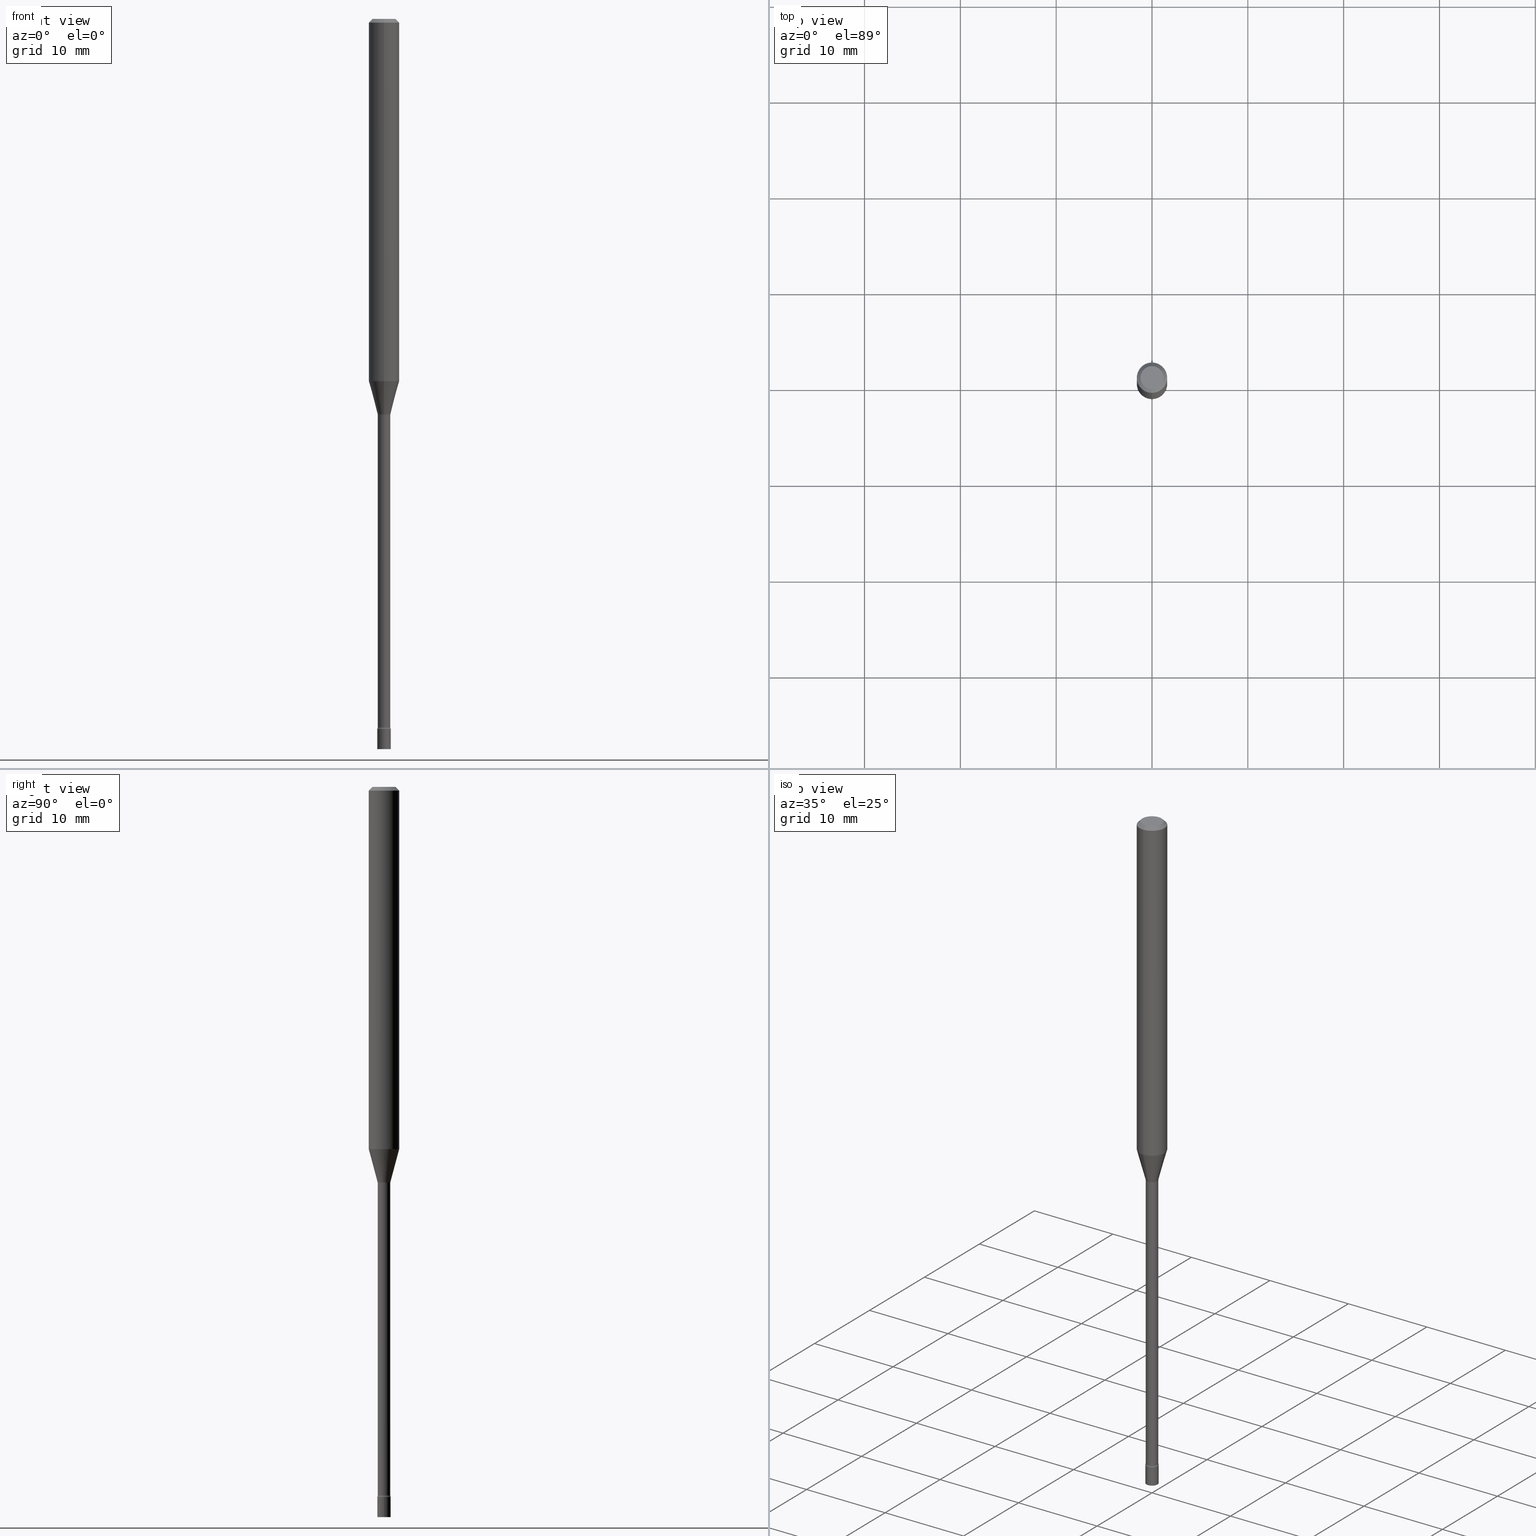
[diagram: canonical four-view strip — front | top / right | iso, engineering-drawing reading convention]
A machine part, canonical four-view strip (front | top / right | iso — engineering-drawing reading convention). The complete STEP part file that produces these views, byte-faithful:
ISO-10303-21;
HEADER;
FILE_DESCRIPTION (( 'STEP AP203' ),
    '1' );
FILE_NAME ('03681.STEP',
    '2024-03-08T22:34:30',
    ( '' ),
    ( '' ),
    'SwSTEP 2.0',
    'SolidWorks 2023',
    '' );
FILE_SCHEMA (( 'CONFIG_CONTROL_DESIGN' ));
ENDSEC;

DATA;
#1 = CARTESIAN_POINT ( 'NONE',  ( 0.000000000000000000, 0.000000000000000000, 0.000000000000000000 ) ) ;
#2 = AXIS2_PLACEMENT_3D ( 'NONE', #436, #400, #68 ) ;
#3 = VECTOR ( 'NONE', #341, 39.37007874015748143 ) ;
#4 = CC_DESIGN_PERSON_AND_ORGANIZATION_ASSIGNMENT ( #463, #61, ( #31 ) ) ;
#5 = CARTESIAN_POINT ( 'NONE',  ( -2.852540253834139269E-16, -0.04085000000001031556, -2.910160592130893953 ) ) ;
#6 = DIRECTION ( 'NONE',  ( -2.445468806185136597E-29, 3.491481338843145583E-15, 1.000000000000000000 ) ) ;
#7 = APPROVAL_STATUS ( 'not_yet_approved' ) ;
#8 = DIRECTION ( 'NONE',  ( -2.445428699565055346E-29, 3.491538773805828826E-15, 1.000000000000000000 ) ) ;
#9 = CIRCLE ( 'NONE', #498, 0.06250000000000000000 ) ;
#10 = LINE ( 'NONE', #101, #367 ) ;
#11 = CARTESIAN_POINT ( 'NONE',  ( -0.02750000000000000014, 1.953992523340275521E-16, -1.352707149820099181E-30 ) ) ;
#12 = LINE ( 'NONE', #262, #223 ) ;
#13 = PRODUCT_RELATED_PRODUCT_CATEGORY ( 'detail', '', ( #31 ) ) ;
#14 = AXIS2_PLACEMENT_3D ( 'NONE', #282, #94, #40 ) ;
#15 = SECURITY_CLASSIFICATION ( '', '', #283 ) ;
#16 = LINE ( 'NONE', #175, #3 ) ;
#17 = VERTEX_POINT ( 'NONE', #471 ) ;
#18 = DIRECTION ( 'NONE',  ( 6.982962677686265922E-15, 1.000000000000000000, -3.483106191921935554E-15 ) ) ;
#19 = DIRECTION ( 'NONE',  ( -2.445428699565055346E-29, 3.491538773805828432E-15, 1.000000000000000000 ) ) ;
#20 = ORIENTED_EDGE ( 'NONE', *, *, #117, .F. ) ;
#21 = ORIENTED_EDGE ( 'NONE', *, *, #365, .T. ) ;
#22 = AXIS2_PLACEMENT_3D ( 'NONE', #368, #493, #414 ) ;
#23 = CC_DESIGN_APPROVAL ( #185, ( #15 ) ) ;
#24 = FACE_OUTER_BOUND ( 'NONE', #42, .T. ) ;
#25 = ADVANCED_FACE ( 'NONE', ( #98 ), #277, .T. ) ;
#26 = ORIENTED_EDGE ( 'NONE', *, *, #299, .T. ) ;
#27 = ORIENTED_EDGE ( 'NONE', *, *, #328, .T. ) ;
#28 = PLANE ( 'NONE',  #55 ) ;
#29 = EDGE_CURVE ( 'NONE', #189, #67, #201, .T. ) ;
#30 = EDGE_LOOP ( 'NONE', ( #264, #483 ) ) ;
#31 = PRODUCT ( '03681', '03681', '', ( #230 ) ) ;
#32 = DIRECTION ( 'NONE',  ( 6.982962677686265922E-15, 1.000000000000000000, -3.491538773805828432E-15 ) ) ;
#33 = CIRCLE ( 'NONE', #48, 0.04749999999999999362 ) ;
#34 = APPROVAL_DATE_TIME ( #401, #196 ) ;
#35 = ORIENTED_EDGE ( 'NONE', *, *, #266, .T. ) ;
#36 = DIRECTION ( 'NONE',  ( 0.000000000000000000, 0.000000000000000000, 1.000000000000000000 ) ) ;
#37 = DIRECTION ( 'NONE',  ( 1.000000000000000000, -7.105427357601001070E-15, 4.926316211917514310E-29 ) ) ;
#38 = DIRECTION ( 'NONE',  ( -2.445428699565055346E-29, 3.491538773805828826E-15, 1.000000000000000000 ) ) ;
#39 = ADVANCED_FACE ( 'NONE', ( #24 ), #430, .F. ) ;
#40 = DIRECTION ( 'NONE',  ( 1.000000000000000000, -6.982962677686279332E-15, 0.000000000000000000 ) ) ;
#41 = AXIS2_PLACEMENT_3D ( 'NONE', #214, #458, #345 ) ;
#42 = EDGE_LOOP ( 'NONE', ( #358, #145, #224, #392 ) ) ;
#43 = CARTESIAN_POINT ( 'NONE',  ( 1.836752971940574728E-16, 0.02584999999999431503, -1.626974787463811412 ) ) ;
#44 = EDGE_CURVE ( 'NONE', #183, #434, #9, .T. ) ;
#45 = CARTESIAN_POINT ( 'NONE',  ( 3.978716091192442903E-29, -5.680552109198189937E-15, -1.626974787463811412 ) ) ;
#46 = DIRECTION ( 'NONE',  ( -2.445428699565055346E-29, 3.491538773805828826E-15, 1.000000000000000000 ) ) ;
#47 = CALENDAR_DATE ( 2024, 8, 3 ) ;
#48 = AXIS2_PLACEMENT_3D ( 'NONE', #171, #46, #207 ) ;
#49 = FACE_OUTER_BOUND ( 'NONE', #481, .T. ) ;
#50 = APPROVAL_DATE_TIME ( #86, #248 ) ;
#51 = FACE_OUTER_BOUND ( 'NONE', #437, .T. ) ;
#52 = PERSON_AND_ORGANIZATION_ROLE ( 'classification_officer' ) ;
#53 = CARTESIAN_POINT ( 'NONE',  ( 2.902567075580406465E-16, 0.04084999999999432141, -1.626974787463811634 ) ) ;
#54 = ORIENTED_EDGE ( 'NONE', *, *, #328, .F. ) ;
#55 = AXIS2_PLACEMENT_3D ( 'NONE', #276, #79, #438 ) ;
#56 = CIRCLE ( 'NONE', #182, 0.04749999999999999362 ) ;
#57 = LINE ( 'NONE', #258, #455 ) ;
#58 = DIRECTION ( 'NONE',  ( -2.445468806185136597E-29, 3.491481338843145583E-15, 1.000000000000000000 ) ) ;
#59 = CARTESIAN_POINT ( 'NONE',  ( 3.840629472727447874E-16, 0.04749999999999999362, -1.947592745229184119E-16 ) ) ;
#60 = EDGE_LOOP ( 'NONE', ( #153, #350, #427, #509 ) ) ;
#61 = PERSON_AND_ORGANIZATION_ROLE ( 'design_owner' ) ;
#62 = EDGE_CURVE ( 'NONE', #431, #434, #424, .T. ) ;
#63 = ORIENTED_EDGE ( 'NONE', *, *, #87, .F. ) ;
#64 = AXIS2_PLACEMENT_3D ( 'NONE', #515, #280, #154 ) ;
#65 = AXIS2_PLACEMENT_3D ( 'NONE', #435, #36, #187 ) ;
#66 = VERTEX_POINT ( 'NONE', #503 ) ;
#67 = VERTEX_POINT ( 'NONE', #426 ) ;
#68 = DIRECTION ( 'NONE',  ( -6.982962677686265922E-15, -1.000000000000000000, 3.491538773805828826E-15 ) ) ;
#69 = EDGE_CURVE ( 'NONE', #229, #354, #325, .T. ) ;
#70 = EDGE_LOOP ( 'NONE', ( #105, #21, #318, #54 ) ) ;
#71 = CARTESIAN_POINT ( 'NONE',  ( 3.316907271900976096E-16, 0.04749999999999999362, -1.803036831393476480E-16 ) ) ;
#72 = AXIS2_PLACEMENT_3D ( 'NONE', #311, #37, #476 ) ;
#73 = CARTESIAN_POINT ( 'NONE',  ( 3.668143049347590078E-31, -5.237308160708754087E-17, -0.01500000000000003067 ) ) ;
#74 = CONICAL_SURFACE ( 'NONE', #357, 0.06250000000000000000, 0.7853981633974483900 ) ;
#75 = ORIENTED_EDGE ( 'NONE', *, *, #347, .F. ) ;
#76 = DESIGN_CONTEXT ( 'detailed design', #139, 'design' ) ;
#77 = DIRECTION ( 'NONE',  ( -2.445428699565055346E-29, 3.491538773805828826E-15, 1.000000000000000000 ) ) ;
#78 = EDGE_CURVE ( 'NONE', #399, #510, #443, .T. ) ;
#79 = DIRECTION ( 'NONE',  ( 2.438088387897960049E-29, -3.491481338843145188E-15, -1.000000000000000000 ) ) ;
#80 = DIRECTION ( 'NONE',  ( -2.445428699565055346E-29, 3.491538773805828826E-15, 1.000000000000000000 ) ) ;
#81 = AXIS2_PLACEMENT_3D ( 'NONE', #5, #133, #447 ) ;
#82 =( NAMED_UNIT ( * ) SI_UNIT ( $, .STERADIAN. ) SOLID_ANGLE_UNIT ( ) );
#83 = APPROVAL_PERSON_ORGANIZATION ( #452, #185, #291 ) ;
#84 = EDGE_CURVE ( 'NONE', #432, #507, #152, .T. ) ;
#85 = CARTESIAN_POINT ( 'NONE',  ( 4.440892098500625669E-16, 0.06250000000000000000, -2.182211733628643017E-16 ) ) ;
#86 = DATE_AND_TIME ( #121, #413 ) ;
#87 = EDGE_CURVE ( 'NONE', #141, #218, #339, .T. ) ;
#88 = ORIENTED_EDGE ( 'NONE', *, *, #62, .T. ) ;
#89 = CARTESIAN_POINT ( 'NONE',  ( -1.805095852181904702E-16, -0.02585000000000007084, 9.025627730288093194E-17 ) ) ;
#90 = CALENDAR_DATE ( 2024, 8, 3 ) ;
#91 = LINE ( 'NONE', #11, #268 ) ;
#92 = AXIS2_PLACEMENT_3D ( 'NONE', #393, #109, #269 ) ;
#93 = PERSON_AND_ORGANIZATION ( #200, #340 ) ;
#94 = DIRECTION ( 'NONE',  ( -2.445468806185136597E-29, 3.491481338843145583E-15, 1.000000000000000000 ) ) ;
#95 = CARTESIAN_POINT ( 'NONE',  ( 1.895372747640785166E-16, 0.02584999999998998516, -2.910160592130893953 ) ) ;
#96 = ORIENTED_EDGE ( 'NONE', *, *, #137, .T. ) ;
#97 = DIRECTION ( 'NONE',  ( -6.982962677686265922E-15, -1.000000000000000000, 3.491538773805829221E-15 ) ) ;
#98 = FACE_OUTER_BOUND ( 'NONE', #138, .T. ) ;
#99 = AXIS2_PLACEMENT_3D ( 'NONE', #309, #344, #342 ) ;
#100 = AXIS2_PLACEMENT_3D ( 'NONE', #451, #170, #337 ) ;
#101 = CARTESIAN_POINT ( 'NONE',  ( -1.840786654675968274E-16, -0.02636111260566965236, -1.623092501787273489 ) ) ;
#102 = CARTESIAN_POINT ( 'NONE',  ( 1.873069706851251626E-16, 0.02636111260565831421, -1.623092501787273489 ) ) ;
#103 = CALENDAR_DATE ( 2024, 8, 3 ) ;
#104 = CARTESIAN_POINT ( 'NONE',  ( 7.133432507642043982E-29, -1.018465106540545729E-14, -2.917000000000000703 ) ) ;
#105 = ORIENTED_EDGE ( 'NONE', *, *, #117, .T. ) ;
#106 = DIRECTION ( 'NONE',  ( -6.982962677686265922E-15, -1.000000000000000000, 3.491538773805828432E-15 ) ) ;
#107 = ORIENTED_EDGE ( 'NONE', *, *, #174, .T. ) ;
#108 = AXIS2_PLACEMENT_3D ( 'NONE', #377, #255, #378 ) ;
#109 = DIRECTION ( 'NONE',  ( -2.438088387897960049E-29, 3.491481338843145188E-15, 1.000000000000000000 ) ) ;
#110 = ORIENTED_EDGE ( 'NONE', *, *, #315, .T. ) ;
#111 = PLANE ( 'NONE',  #405 ) ;
#112 = PERSON_AND_ORGANIZATION ( #200, #340 ) ;
#113 = DIRECTION ( 'NONE',  ( -2.445428699565055346E-29, 3.491538773805828826E-15, 1.000000000000000000 ) ) ;
#114 = ORIENTED_EDGE ( 'NONE', *, *, #146, .T. ) ;
#115 = CARTESIAN_POINT ( 'NONE',  ( -4.287811248607203282E-16, -0.06250000000000005551, -0.01499999999999981209 ) ) ;
#116 = AXIS2_PLACEMENT_3D ( 'NONE', #53, #343, #425 ) ;
#117 = EDGE_CURVE ( 'NONE', #459, #470, #134, .T. ) ;
#118 = MANIFOLD_SOLID_BREP ( 'Body-Move/Copy2[2]', #475 ) ;
#119 = CYLINDRICAL_SURFACE ( 'NONE', #505, 0.02750000000000000014 ) ;
#120 = CARTESIAN_POINT ( 'NONE',  ( 7.133315516631267270E-29, -1.018481860319160417E-14, -2.917000000000000703 ) ) ;
#121 = CALENDAR_DATE ( 2024, 8, 3 ) ;
#122 = UNCERTAINTY_MEASURE_WITH_UNIT (LENGTH_MEASURE( 1.000000000000000082E-05 ), #490, 'distance_accuracy_value', 'NONE');
#123 = FACE_OUTER_BOUND ( 'NONE', #151, .T. ) ;
#124 = ADVANCED_FACE ( 'NONE', ( #197 ), #484, .T. ) ;
#125 = AXIS2_PLACEMENT_3D ( 'NONE', #488, #290, #205 ) ;
#126 = AXIS2_PLACEMENT_3D ( 'NONE', #464, #461, #97 ) ;
#127 = DIRECTION ( 'NONE',  ( -2.445428699565055346E-29, 3.491538773805828826E-15, 1.000000000000000000 ) ) ;
#128 = PERSON_AND_ORGANIZATION ( #200, #340 ) ;
#129 = ORIENTED_EDGE ( 'NONE', *, *, #289, .T. ) ;
#130 = FACE_OUTER_BOUND ( 'NONE', #70, .T. ) ;
#131 = CC_DESIGN_PERSON_AND_ORGANIZATION_ASSIGNMENT ( #93, #213, ( #477 ) ) ;
#132 = ADVANCED_FACE ( 'NONE', ( #520 ), #119, .T. ) ;
#133 = DIRECTION ( 'NONE',  ( -1.000000000000000000, 6.982962677686265922E-15, -4.883557194083112340E-29 ) ) ;
#134 = CIRCLE ( 'NONE', #233, 0.02585000000000014370 ) ;
#135 = CARTESIAN_POINT ( 'NONE',  ( 3.156980902676120702E-16, 0.02636111260565831421, -1.623092501787273489 ) ) ;
#136 = DIRECTION ( 'NONE',  ( -1.807323732225322645E-15, -0.2588190451025171313, 0.9659258262890693114 ) ) ;
#137 = EDGE_CURVE ( 'NONE', #431, #17, #465, .T. ) ;
#138 = EDGE_LOOP ( 'NONE', ( #372, #96, #192, #380 ) ) ;
#139 = APPLICATION_CONTEXT ( 'configuration controlled 3d designs of mechanical parts and assemblies' ) ;
#140 = CYLINDRICAL_SURFACE ( 'NONE', #126, 0.02585000000000007084 ) ;
#141 = VERTEX_POINT ( 'NONE', #316 ) ;
#142 = ADVANCED_FACE ( 'NONE', ( #327 ), #28, .T. ) ;
#143 = AXIS2_PLACEMENT_3D ( 'NONE', #334, #8, #249 ) ;
#144 = ORIENTED_EDGE ( 'NONE', *, *, #221, .F. ) ;
#145 = ORIENTED_EDGE ( 'NONE', *, *, #416, .F. ) ;
#146 = EDGE_CURVE ( 'NONE', #507, #510, #422, .T. ) ;
#147 = EDGE_CURVE ( 'NONE', #470, #462, #191, .T. ) ;
#148 = ORIENTED_EDGE ( 'NONE', *, *, #69, .F. ) ;
#149 = CARTESIAN_POINT ( 'NONE',  ( 3.668143049347590078E-31, -5.237308160708754087E-17, -0.01500000000000003067 ) ) ;
#150 = CIRCLE ( 'NONE', #514, 0.02750000000000000014 ) ;
#151 = EDGE_LOOP ( 'NONE', ( #519, #390, #107, #495 ) ) ;
#152 = LINE ( 'NONE', #199, #250 ) ;
#153 = ORIENTED_EDGE ( 'NONE', *, *, #137, .F. ) ;
#154 = DIRECTION ( 'NONE',  ( 1.000000000000000000, -6.982962677686279332E-15, 0.000000000000000000 ) ) ;
#155 = COORDINATED_UNIVERSAL_TIME_OFFSET ( 5, 0, .BEHIND. ) ;
#156 = ORIENTED_EDGE ( 'NONE', *, *, #147, .T. ) ;
#157 = DIRECTION ( 'NONE',  ( -2.445428699565055346E-29, 3.491538773805828826E-15, 1.000000000000000000 ) ) ;
#158 = CC_DESIGN_DATE_AND_TIME_ASSIGNMENT ( #408, #449, ( #15 ) ) ;
#159 = APPROVAL_STATUS ( 'not_yet_approved' ) ;
#160 = CIRCLE ( 'NONE', #14, 0.02750000000000000014 ) ;
#161 = CIRCLE ( 'NONE', #116, 0.01500000000000002720 ) ;
#162 = DIRECTION ( 'NONE',  ( -2.445468806185136597E-29, 3.491481338843145583E-15, 1.000000000000000000 ) ) ;
#163 = CARTESIAN_POINT ( 'NONE',  ( 3.969156985919444182E-29, -5.667090403463771759E-15, -1.623092501787273489 ) ) ;
#164 = ADVANCED_FACE ( 'NONE', ( #238 ), #228, .T. ) ;
#165 = DIRECTION ( 'NONE',  ( 1.000000000000000000, -6.982962677686279332E-15, 0.000000000000000000 ) ) ;
#166 = COORDINATED_UNIVERSAL_TIME_OFFSET ( 5, 0, .BEHIND. ) ;
#167 = EDGE_LOOP ( 'NONE', ( #428, #144 ) ) ;
#168 = AXIS2_PLACEMENT_3D ( 'NONE', #163, #444, #329 ) ;
#169 = APPLICATION_PROTOCOL_DEFINITION ( 'international standard', 'config_control_design', 1994, #387 ) ;
#170 = DIRECTION ( 'NONE',  ( -1.000000000000000000, 6.982962677686265922E-15, -4.883557194083112340E-29 ) ) ;
#171 = CARTESIAN_POINT ( 'NONE',  ( 7.070023607713859463E-46, -1.009445156280616203E-31, -2.891118276714155250E-17 ) ) ;
#172 = CARTESIAN_POINT ( 'NONE',  ( 1.920314736364436624E-16, 0.02749999999998981731, -2.917000000000000703 ) ) ;
#173 = CIRCLE ( 'NONE', #261, 0.02636111260566398329 ) ;
#174 = EDGE_CURVE ( 'NONE', #510, #507, #260, .T. ) ;
#175 = CARTESIAN_POINT ( 'NONE',  ( 0.02750000000000000014, -1.920314736363723444E-16, 1.340948613343882413E-30 ) ) ;
#176 = ORIENTED_EDGE ( 'NONE', *, *, #416, .T. ) ;
#177 = ADVANCED_FACE ( 'NONE', ( #512 ), #237, .T. ) ;
#178 = PLANE ( 'NONE',  #423 ) ;
#179 = ORIENTED_EDGE ( 'NONE', *, *, #44, .T. ) ;
#180 = CARTESIAN_POINT ( 'NONE',  ( -3.773273898774340269E-16, -0.04749999999999999362, 1.369369089886353315E-16 ) ) ;
#181 = AXIS2_PLACEMENT_3D ( 'NONE', #104, #58, #389 ) ;
#182 = AXIS2_PLACEMENT_3D ( 'NONE', #295, #448, #331 ) ;
#183 = VERTEX_POINT ( 'NONE', #487 ) ;
#184 = EDGE_LOOP ( 'NONE', ( #278, #110, #222, #274 ) ) ;
#185 = APPROVAL ( #7, 'UNSPECIFIED' ) ;
#186 = ORIENTED_EDGE ( 'NONE', *, *, #147, .F. ) ;
#187 = DIRECTION ( 'NONE',  ( 1.000000000000000000, 0.000000000000000000, 0.000000000000000000 ) ) ;
#188 = DIRECTION ( 'NONE',  ( -6.982962677686265922E-15, -1.000000000000000000, 3.491538773805828826E-15 ) ) ;
#189 = VERTEX_POINT ( 'NONE', #190 ) ;
#190 = CARTESIAN_POINT ( 'NONE',  ( 0.02750000000000000014, -1.037668253904183058E-14, -2.917000000000000703 ) ) ;
#191 = CIRCLE ( 'NONE', #72, 0.01500000000000001159 ) ;
#192 = ORIENTED_EDGE ( 'NONE', *, *, #362, .T. ) ;
#193 =( GEOMETRIC_REPRESENTATION_CONTEXT ( 3 ) GLOBAL_UNCERTAINTY_ASSIGNED_CONTEXT ( ( #122 ) ) GLOBAL_UNIT_ASSIGNED_CONTEXT ( ( #490, #330, #82 ) ) REPRESENTATION_CONTEXT ( 'NONE', 'WORKASPACE' ) );
#194 = DIRECTION ( 'NONE',  ( -2.445428699565055346E-29, 3.491538773805828826E-15, 1.000000000000000000 ) ) ;
#195 = ORIENTED_EDGE ( 'NONE', *, *, #78, .F. ) ;
#196 = APPROVAL ( #159, 'UNSPECIFIED' ) ;
#197 = FACE_OUTER_BOUND ( 'NONE', #271, .T. ) ;
#198 = DATE_AND_TIME ( #480, #439 ) ;
#199 = CARTESIAN_POINT ( 'NONE',  ( 4.364351673553919652E-16, 0.06249999999999995143, -0.01500000000000024751 ) ) ;
#200 = PERSON ( 'UNSPECIFIED', 'UNSPECIFIED', 'UNSPECIFIED', ('UNSPECIFIED'), ('UNSPECIFIED'), ('UNSPECIFIED') ) ;
#201 = CIRCLE ( 'NONE', #181, 0.02750000000000000014 ) ;
#202 = CIRCLE ( 'NONE', #374, 0.06250000000000000000 ) ;
#203 = CYLINDRICAL_SURFACE ( 'NONE', #22, 0.02585000000000007084 ) ;
#204 = CC_DESIGN_PERSON_AND_ORGANIZATION_ASSIGNMENT ( #508, #317, ( #429 ) ) ;
#205 = DIRECTION ( 'NONE',  ( -6.982962677686266711E-15, -1.000000000000000000, 0.000000000000000000 ) ) ;
#206 = DIRECTION ( 'NONE',  ( -6.982962677686265922E-15, -1.000000000000000000, 3.491538773805828432E-15 ) ) ;
#207 = DIRECTION ( 'NONE',  ( -6.982962677686266711E-15, -1.000000000000000000, 3.491538773805829221E-15 ) ) ;
#208 = AXIS2_PLACEMENT_3D ( 'NONE', #319, #113, #272 ) ;
#209 = CIRCLE ( 'NONE', #100, 0.01500000000000002720 ) ;
#210 = DIRECTION ( 'NONE',  ( -2.445428699565055346E-29, 3.491538773805828826E-15, 1.000000000000000000 ) ) ;
#211 = CARTESIAN_POINT ( 'NONE',  ( 7.116706949045367529E-29, -1.016077140046173545E-14, -2.910160592130893953 ) ) ;
#212 = CYLINDRICAL_SURFACE ( 'NONE', #41, 0.02750000000000000014 ) ;
#213 = PERSON_AND_ORGANIZATION_ROLE ( 'design_supplier' ) ;
#214 = CARTESIAN_POINT ( 'NONE',  ( 0.000000000000000000, 0.000000000000000000, 0.000000000000000000 ) ) ;
#215 = EDGE_LOOP ( 'NONE', ( #195, #346, #419, #114 ) ) ;
#216 = CONICAL_SURFACE ( 'NONE', #168, 0.02636111260566398329, 0.2617993877991491858 ) ;
#217 = DIRECTION ( 'NONE',  ( -2.445428699565055346E-29, 3.491538773805828432E-15, 1.000000000000000000 ) ) ;
#218 = VERTEX_POINT ( 'NONE', #355 ) ;
#219 = CARTESIAN_POINT ( 'NONE',  ( 4.440892098500988052E-16, 0.06249999999999477501, -1.488220337902601109 ) ) ;
#220 = ADVANCED_FACE ( 'NONE', ( #402 ), #111, .F. ) ;
#221 = EDGE_CURVE ( 'NONE', #462, #66, #388, .T. ) ;
#222 = ORIENTED_EDGE ( 'NONE', *, *, #29, .F. ) ;
#223 = VECTOR ( 'NONE', #217, 39.37007874015748143 ) ;
#224 = ORIENTED_EDGE ( 'NONE', *, *, #292, .T. ) ;
#225 = DIRECTION ( 'NONE',  ( -6.982962677686265922E-15, -1.000000000000000000, 4.370956789862821150E-15 ) ) ;
#226 = ADVANCED_FACE ( 'NONE', ( #253 ), #454, .F. ) ;
#227 = ORIENTED_EDGE ( 'NONE', *, *, #517, .T. ) ;
#228 = CYLINDRICAL_SURFACE ( 'NONE', #241, 0.06250000000000000000 ) ;
#229 = VERTEX_POINT ( 'NONE', #43 ) ;
#230 = MECHANICAL_CONTEXT ( 'NONE', #387, 'mechanical' ) ;
#231 = DIRECTION ( 'NONE',  ( 2.445428699565055346E-29, -3.491538773805828432E-15, -1.000000000000000000 ) ) ;
#232 = EDGE_CURVE ( 'NONE', #67, #189, #160, .T. ) ;
#233 = AXIS2_PLACEMENT_3D ( 'NONE', #352, #157, #364 ) ;
#234 = ORIENTED_EDGE ( 'NONE', *, *, #370, .T. ) ;
#235 = LOCAL_TIME ( 17, 34, 30.00000000000000000, #468 ) ;
#236 = DIRECTION ( 'NONE',  ( -6.982962677686265922E-15, -1.000000000000000000, 3.483106191921935554E-15 ) ) ;
#237 = PLANE ( 'NONE',  #92 ) ;
#238 = FACE_OUTER_BOUND ( 'NONE', #349, .T. ) ;
#239 = ADVANCED_FACE ( 'NONE', ( #130 ), #203, .T. ) ;
#240 =( LENGTH_UNIT ( ) NAMED_UNIT ( * ) SI_UNIT ( $, .METRE. ) );
#241 = AXIS2_PLACEMENT_3D ( 'NONE', #361, #403, #188 ) ;
#242 = CC_DESIGN_APPROVAL ( #248, ( #477 ) ) ;
#243 = DIRECTION ( 'NONE',  ( -6.982962677686266711E-15, -1.000000000000000000, 0.000000000000000000 ) ) ;
#244 = ORIENTED_EDGE ( 'NONE', *, *, #266, .F. ) ;
#245 = DIRECTION ( 'NONE',  ( -2.445428699565055346E-29, 3.491538773805828432E-15, 1.000000000000000000 ) ) ;
#246 = DIRECTION ( 'NONE',  ( 2.445428699565055346E-29, -3.491538773805828826E-15, -1.000000000000000000 ) ) ;
#247 = APPROVAL_ROLE ( '' ) ;
#248 = APPROVAL ( #485, 'UNSPECIFIED' ) ;
#249 = DIRECTION ( 'NONE',  ( -6.982962677686265922E-15, -1.000000000000000000, 3.491538773805828826E-15 ) ) ;
#250 = VECTOR ( 'NONE', #321, 39.37007874015748143 ) ;
#251 = LOCAL_TIME ( 17, 34, 30.00000000000000000, #166 ) ;
#252 = COORDINATED_UNIVERSAL_TIME_OFFSET ( 5, 0, .BEHIND. ) ;
#253 = FACE_OUTER_BOUND ( 'NONE', #310, .T. ) ;
#254 = APPROVAL_DATE_TIME ( #457, #185 ) ;
#255 = DIRECTION ( 'NONE',  ( -2.445428699565055346E-29, 3.491538773805828826E-15, 1.000000000000000000 ) ) ;
#256 = ORIENTED_EDGE ( 'NONE', *, *, #232, .F. ) ;
#257 = ADVANCED_FACE ( 'NONE', ( #369 ), #446, .F. ) ;
#258 = CARTESIAN_POINT ( 'NONE',  ( 1.836752971939863767E-16, 0.02585000000000007084, -9.025627730288093194E-17 ) ) ;
#259 = DIRECTION ( 'NONE',  ( -2.445428699565055346E-29, 3.491538773805828826E-15, 1.000000000000000000 ) ) ;
#260 = CIRCLE ( 'NONE', #373, 0.06250000000000000000 ) ;
#261 = AXIS2_PLACEMENT_3D ( 'NONE', #303, #499, #502 ) ;
#262 = CARTESIAN_POINT ( 'NONE',  ( -4.364351673553916201E-16, -0.06250000000000000000, 2.182211733628643017E-16 ) ) ;
#263 = ORIENTED_EDGE ( 'NONE', *, *, #289, .F. ) ;
#264 = ORIENTED_EDGE ( 'NONE', *, *, #29, .T. ) ;
#265 = EDGE_LOOP ( 'NONE', ( #263, #156, #469, #244 ) ) ;
#266 = EDGE_CURVE ( 'NONE', #459, #66, #412, .T. ) ;
#267 = DIRECTION ( 'NONE',  ( -2.445428699565055346E-29, 3.491538773805828826E-15, 1.000000000000000000 ) ) ;
#268 = VECTOR ( 'NONE', #407, 39.37007874015748143 ) ;
#269 = DIRECTION ( 'NONE',  ( 1.000000000000000000, -6.982962677686265922E-15, 4.876176775795935793E-29 ) ) ;
#270 = ADVANCED_FACE ( 'NONE', ( #49 ), #216, .T. ) ;
#271 = EDGE_LOOP ( 'NONE', ( #179, #511, #360, #300 ) ) ;
#272 = DIRECTION ( 'NONE',  ( -6.982962677686265922E-15, -1.000000000000000000, 0.000000000000000000 ) ) ;
#273 = EDGE_CURVE ( 'NONE', #218, #141, #150, .T. ) ;
#274 = ORIENTED_EDGE ( 'NONE', *, *, #501, .F. ) ;
#275 = ADVANCED_BREP_SHAPE_REPRESENTATION ( '03681', ( #472, #118, #65 ), #193 ) ;
#276 = CARTESIAN_POINT ( 'NONE',  ( 1.920314736364457085E-16, 0.02749999999998952588, -3.000000000000000444 ) ) ;
#277 = CONICAL_SURFACE ( 'NONE', #99, 0.02636111260566398329, 0.2617993877991491858 ) ;
#278 = ORIENTED_EDGE ( 'NONE', *, *, #87, .T. ) ;
#279 = CC_DESIGN_APPROVAL ( #196, ( #429 ) ) ;
#280 = DIRECTION ( 'NONE',  ( -2.445468806185136597E-29, 3.491481338843145583E-15, 1.000000000000000000 ) ) ;
#281 = DIRECTION ( 'NONE',  ( -4.851104656540964275E-15, -0.7071067811865500152, -0.7071067811865450192 ) ) ;
#282 = CARTESIAN_POINT ( 'NONE',  ( 7.133432507642043982E-29, -1.018465106540545729E-14, -2.917000000000000703 ) ) ;
#283 = SECURITY_CLASSIFICATION_LEVEL ( 'unclassified' ) ;
#284 = DIRECTION ( 'NONE',  ( -6.982962677686265922E-15, -1.000000000000000000, 4.370956789862821150E-15 ) ) ;
#285 = AXIS2_PLACEMENT_3D ( 'NONE', #391, #259, #106 ) ;
#286 = CIRCLE ( 'NONE', #108, 0.02584999999999999451 ) ;
#287 = LINE ( 'NONE', #85, #466 ) ;
#288 = LENGTH_MEASURE_WITH_UNIT ( LENGTH_MEASURE( 0.02539999999999999897 ), #240 );
#289 = EDGE_CURVE ( 'NONE', #470, #459, #356, .T. ) ;
#290 = DIRECTION ( 'NONE',  ( -2.445428699565055346E-29, 3.491538773805828826E-15, 1.000000000000000000 ) ) ;
#291 = APPROVAL_ROLE ( '' ) ;
#292 = EDGE_CURVE ( 'NONE', #17, #354, #209, .T. ) ;
#293 = CARTESIAN_POINT ( 'NONE',  ( -4.364351673553912750E-16, -0.06250000000000005551, -0.01499999999999981209 ) ) ;
#294 = DIRECTION ( 'NONE',  ( -6.982962677686265922E-15, -1.000000000000000000, 3.491538773805828826E-15 ) ) ;
#295 = CARTESIAN_POINT ( 'NONE',  ( 7.070023607713859463E-46, -1.009445156280616203E-31, -2.891118276714155250E-17 ) ) ;
#296 = AXIS2_PLACEMENT_3D ( 'NONE', #73, #442, #236 ) ;
#297 = AXIS2_PLACEMENT_3D ( 'NONE', #120, #80, #243 ) ;
#298 = FACE_OUTER_BOUND ( 'NONE', #215, .T. ) ;
#299 = EDGE_CURVE ( 'NONE', #66, #462, #379, .T. ) ;
#300 = ORIENTED_EDGE ( 'NONE', *, *, #370, .F. ) ;
#301 = FACE_OUTER_BOUND ( 'NONE', #167, .T. ) ;
#302 = CARTESIAN_POINT ( 'NONE',  ( 3.639336725583423874E-29, -5.196179013753343527E-15, -1.488220337902600887 ) ) ;
#303 = CARTESIAN_POINT ( 'NONE',  ( 3.969156985919444182E-29, -5.667090403463771759E-15, -1.623092501787273489 ) ) ;
#304 = ORIENTED_EDGE ( 'NONE', *, *, #44, .F. ) ;
#305 = AXIS2_PLACEMENT_3D ( 'NONE', #482, #38, #433 ) ;
#306 = APPROVAL_ROLE ( '' ) ;
#307 = ORIENTED_EDGE ( 'NONE', *, *, #273, .T. ) ;
#308 = EDGE_LOOP ( 'NONE', ( #63, #513 ) ) ;
#309 = CARTESIAN_POINT ( 'NONE',  ( 3.969156985919444182E-29, -5.667090403463771759E-15, -1.623092501787273489 ) ) ;
#310 = EDGE_LOOP ( 'NONE', ( #186, #20, #35, #26 ) ) ;
#311 = CARTESIAN_POINT ( 'NONE',  ( 2.902567075580731377E-16, 0.04084999999998999848, -2.910160592130893953 ) ) ;
#312 = AXIS2_PLACEMENT_3D ( 'NONE', #211, #127, #294 ) ;
#313 = LOCAL_TIME ( 17, 34, 30.00000000000000000, #252 ) ;
#314 = EDGE_LOOP ( 'NONE', ( #467, #478 ) ) ;
#315 = EDGE_CURVE ( 'NONE', #218, #67, #91, .T. ) ;
#316 = CARTESIAN_POINT ( 'NONE',  ( 0.02750000000000000014, -1.066647549016580963E-14, -3.000000000000000444 ) ) ;
#317 = PERSON_AND_ORGANIZATION_ROLE ( 'creator' ) ;
#318 = ORIENTED_EDGE ( 'NONE', *, *, #474, .F. ) ;
#319 = CARTESIAN_POINT ( 'NONE',  ( 3.969156985919444182E-29, -5.667090403463771759E-15, -1.623092501787273489 ) ) ;
#320 = EDGE_LOOP ( 'NONE', ( #473, #307, #394, #256 ) ) ;
#321 = DIRECTION ( 'NONE',  ( 4.937700262164548042E-15, 0.7071067811865451302, -0.7071067811865499042 ) ) ;
#322 = PERSON_AND_ORGANIZATION ( #200, #340 ) ;
#323 = EDGE_CURVE ( 'NONE', #432, #399, #56, .T. ) ;
#324 = VECTOR ( 'NONE', #281, 39.37007874015748143 ) ;
#325 = CIRCLE ( 'NONE', #305, 0.02584999999999999451 ) ;
#326 = CC_DESIGN_SECURITY_CLASSIFICATION ( #15, ( #477 ) ) ;
#327 = FACE_OUTER_BOUND ( 'NONE', #308, .T. ) ;
#328 = EDGE_CURVE ( 'NONE', #459, #354, #456, .T. ) ;
#329 = DIRECTION ( 'NONE',  ( -6.982962677686265922E-15, -1.000000000000000000, 0.000000000000000000 ) ) ;
#330 =( NAMED_UNIT ( * ) PLANE_ANGLE_UNIT ( ) SI_UNIT ( $, .RADIAN. ) );
#331 = DIRECTION ( 'NONE',  ( -6.982962677686266711E-15, -1.000000000000000000, 3.491538773805829221E-15 ) ) ;
#332 = ADVANCED_FACE ( 'NONE', ( #123 ), #74, .T. ) ;
#333 = AXIS2_PLACEMENT_3D ( 'NONE', #45, #497, #206 ) ;
#334 = CARTESIAN_POINT ( 'NONE',  ( 7.116706949045367529E-29, -1.016077140046173545E-14, -2.910160592130893953 ) ) ;
#335 = EDGE_CURVE ( 'NONE', #399, #432, #33, .T. ) ;
#336 = CARTESIAN_POINT ( 'NONE',  ( 3.668143049347590078E-31, -5.237308160708754087E-17, -0.01500000000000003067 ) ) ;
#337 = DIRECTION ( 'NONE',  ( -6.982962677686263555E-15, -1.000000000000000000, 0.000000000000000000 ) ) ;
#338 = DIRECTION ( 'NONE',  ( -6.982962677686265922E-15, -1.000000000000000000, 3.491538773805828432E-15 ) ) ;
#339 = CIRCLE ( 'NONE', #64, 0.02750000000000000014 ) ;
#340 = ORGANIZATION ( 'UNSPECIFIED', 'UNSPECIFIED', '' ) ;
#341 = DIRECTION ( 'NONE',  ( -2.445468806185136877E-29, 3.491481338843145188E-15, 1.000000000000000000 ) ) ;
#342 = DIRECTION ( 'NONE',  ( -6.982962677686265922E-15, -1.000000000000000000, 0.000000000000000000 ) ) ;
#343 = DIRECTION ( 'NONE',  ( 1.000000000000000000, -7.105427357601001070E-15, 4.926316211917514310E-29 ) ) ;
#344 = DIRECTION ( 'NONE',  ( -2.445428699565055346E-29, 3.491538773805828826E-15, 1.000000000000000000 ) ) ;
#345 = DIRECTION ( 'NONE',  ( 1.000000000000000000, -6.982962677686266711E-15, 4.876176775795935793E-29 ) ) ;
#346 = ORIENTED_EDGE ( 'NONE', *, *, #323, .F. ) ;
#347 = EDGE_CURVE ( 'NONE', #434, #507, #287, .T. ) ;
#348 = APPROVAL_PERSON_ORGANIZATION ( #322, #248, #247 ) ;
#349 = EDGE_LOOP ( 'NONE', ( #75, #227, #234, #386 ) ) ;
#350 = ORIENTED_EDGE ( 'NONE', *, *, #409, .T. ) ;
#351 = ORIENTED_EDGE ( 'NONE', *, *, #365, .F. ) ;
#352 = CARTESIAN_POINT ( 'NONE',  ( 7.116590232340123908E-29, -1.016093854542674699E-14, -2.910160592130893953 ) ) ;
#353 = ADVANCED_FACE ( 'NONE', ( #375 ), #486, .F. ) ;
#354 = VERTEX_POINT ( 'NONE', #371 ) ;
#355 = CARTESIAN_POINT ( 'NONE',  ( -0.02750000000000000014, -1.013414828863342107E-14, -3.000000000000000444 ) ) ;
#356 = CIRCLE ( 'NONE', #125, 0.02585000000000014370 ) ;
#357 = AXIS2_PLACEMENT_3D ( 'NONE', #336, #246, #410 ) ;
#358 = ORIENTED_EDGE ( 'NONE', *, *, #409, .F. ) ;
#359 = DIRECTION ( 'NONE',  ( -6.982962677686266711E-15, -1.000000000000000000, 0.000000000000000000 ) ) ;
#360 = ORIENTED_EDGE ( 'NONE', *, *, #174, .F. ) ;
#361 = CARTESIAN_POINT ( 'NONE',  ( 0.000000000000000000, 0.000000000000000000, 0.000000000000000000 ) ) ;
#362 = EDGE_CURVE ( 'NONE', #17, #183, #10, .T. ) ;
#363 = DATE_TIME_ROLE ( 'creation_date' ) ;
#364 = DIRECTION ( 'NONE',  ( -6.982962677686266711E-15, -1.000000000000000000, 0.000000000000000000 ) ) ;
#365 = EDGE_CURVE ( 'NONE', #470, #229, #57, .T. ) ;
#366 = CLOSED_SHELL ( 'NONE', ( #132, #177, #440, #142 ) ) ;
#367 = VECTOR ( 'NONE', #136, 39.37007874015748854 ) ;
#368 = CARTESIAN_POINT ( 'NONE',  ( 0.000000000000000000, 0.000000000000000000, 0.000000000000000000 ) ) ;
#369 = FACE_OUTER_BOUND ( 'NONE', #265, .T. ) ;
#370 = EDGE_CURVE ( 'NONE', #183, #510, #12, .T. ) ;
#371 = CARTESIAN_POINT ( 'NONE',  ( -1.805095852181501643E-16, -0.02585000000000567746, -1.626974787463811412 ) ) ;
#372 = ORIENTED_EDGE ( 'NONE', *, *, #62, .F. ) ;
#373 = AXIS2_PLACEMENT_3D ( 'NONE', #149, #77, #479 ) ;
#374 = AXIS2_PLACEMENT_3D ( 'NONE', #450, #210, #284 ) ;
#375 = FACE_OUTER_BOUND ( 'NONE', #60, .T. ) ;
#376 = CARTESIAN_POINT ( 'NONE',  ( 7.336406418555409790E-29, -1.047444401652943635E-14, -3.000000000000000444 ) ) ;
#377 = CARTESIAN_POINT ( 'NONE',  ( 3.978650838732760149E-29, -5.680645554434395144E-15, -1.626974787463811412 ) ) ;
#378 = DIRECTION ( 'NONE',  ( -6.982962677686266711E-15, -1.000000000000000000, 0.000000000000000000 ) ) ;
#379 = CIRCLE ( 'NONE', #297, 0.02750000000000000014 ) ;
#380 = ORIENTED_EDGE ( 'NONE', *, *, #517, .F. ) ;
#381 = ADVANCED_FACE ( 'NONE', ( #298 ), #398, .T. ) ;
#382 = CARTESIAN_POINT ( 'NONE',  ( 3.668143049347590078E-31, -5.237308160708754087E-17, -0.01500000000000003067 ) ) ;
#383 = DIRECTION ( 'NONE',  ( 1.839019923739592821E-15, 0.2588190451025239036, 0.9659258262890675351 ) ) ;
#384 = FACE_OUTER_BOUND ( 'NONE', #320, .T. ) ;
#385 = ADVANCED_FACE ( 'NONE', ( #301 ), #178, .F. ) ;
#386 = ORIENTED_EDGE ( 'NONE', *, *, #146, .F. ) ;
#387 = APPLICATION_CONTEXT ( 'configuration controlled 3d designs of mechanical parts and assemblies' ) ;
#388 = CIRCLE ( 'NONE', #491, 0.02750000000000000014 ) ;
#389 = DIRECTION ( 'NONE',  ( 1.000000000000000000, -6.982962677686279332E-15, 0.000000000000000000 ) ) ;
#390 = ORIENTED_EDGE ( 'NONE', *, *, #78, .T. ) ;
#391 = CARTESIAN_POINT ( 'NONE',  ( 3.978716091192442903E-29, -5.680552109198189937E-15, -1.626974787463811412 ) ) ;
#392 = ORIENTED_EDGE ( 'NONE', *, *, #474, .T. ) ;
#393 = CARTESIAN_POINT ( 'NONE',  ( 7.133432507642043982E-29, -1.018465106540545729E-14, -2.917000000000000703 ) ) ;
#394 = ORIENTED_EDGE ( 'NONE', *, *, #501, .T. ) ;
#395 = DIRECTION ( 'NONE',  ( 1.000000000000000000, -6.982962677686266711E-15, 4.876176775795935793E-29 ) ) ;
#396 = PRODUCT_DEFINITION_SHAPE ( 'NONE', 'NONE',  #429 ) ;
#397 = VECTOR ( 'NONE', #383, 39.37007874015748854 ) ;
#398 = CONICAL_SURFACE ( 'NONE', #406, 0.06250000000000000000, 0.7853981633974483900 ) ;
#399 = VERTEX_POINT ( 'NONE', #180 ) ;
#400 = DIRECTION ( 'NONE',  ( -2.445428699565055346E-29, 3.491538773805828826E-15, 1.000000000000000000 ) ) ;
#401 = DATE_AND_TIME ( #103, #235 ) ;
#402 = FACE_OUTER_BOUND ( 'NONE', #314, .T. ) ;
#403 = DIRECTION ( 'NONE',  ( -2.445428699565055346E-29, 3.491538773805828826E-15, 1.000000000000000000 ) ) ;
#404 = APPLICATION_PROTOCOL_DEFINITION ( 'international standard', 'config_control_design', 1994, #139 ) ;
#405 = AXIS2_PLACEMENT_3D ( 'NONE', #71, #231, #32 ) ;
#406 = AXIS2_PLACEMENT_3D ( 'NONE', #382, #504, #18 ) ;
#407 = DIRECTION ( 'NONE',  ( -2.445468806185136877E-29, 3.491481338843145188E-15, 1.000000000000000000 ) ) ;
#408 = DATE_AND_TIME ( #47, #313 ) ;
#409 = EDGE_CURVE ( 'NONE', #431, #229, #161, .T. ) ;
#410 = DIRECTION ( 'NONE',  ( 6.982962677686265922E-15, 1.000000000000000000, -3.483106191921935554E-15 ) ) ;
#411 = COORDINATED_UNIVERSAL_TIME_OFFSET ( 5, 0, .BEHIND. ) ;
#412 = CIRCLE ( 'NONE', #81, 0.01500000000000001159 ) ;
#413 = LOCAL_TIME ( 17, 34, 30.00000000000000000, #411 ) ;
#414 = DIRECTION ( 'NONE',  ( -6.982962677686265922E-15, -1.000000000000000000, 3.491538773805829221E-15 ) ) ;
#415 = CARTESIAN_POINT ( 'NONE',  ( -1.805095852181198424E-16, -0.02585000000001030224, -2.910160592130893953 ) ) ;
#416 = EDGE_CURVE ( 'NONE', #17, #431, #173, .T. ) ;
#417 = SHAPE_DEFINITION_REPRESENTATION ( #396, #275 ) ;
#418 = DIRECTION ( 'NONE',  ( -2.445428699565055346E-29, 3.491538773805828432E-15, 1.000000000000000000 ) ) ;
#419 = ORIENTED_EDGE ( 'NONE', *, *, #84, .T. ) ;
#420 = ADVANCED_FACE ( 'NONE', ( #51 ), #140, .T. ) ;
#421 = CARTESIAN_POINT ( 'NONE',  ( 4.440892098500992982E-16, 0.06249999999999995143, -0.01500000000000024751 ) ) ;
#422 = CIRCLE ( 'NONE', #296, 0.06250000000000000000 ) ;
#423 = AXIS2_PLACEMENT_3D ( 'NONE', #172, #19, #338 ) ;
#424 = LINE ( 'NONE', #102, #397 ) ;
#425 = DIRECTION ( 'NONE',  ( 7.105427357600997914E-15, 1.000000000000000000, 0.000000000000000000 ) ) ;
#426 = CARTESIAN_POINT ( 'NONE',  ( -0.02750000000000000014, -1.013414828863342107E-14, -2.917000000000000703 ) ) ;
#427 = ORIENTED_EDGE ( 'NONE', *, *, #69, .T. ) ;
#428 = ORIENTED_EDGE ( 'NONE', *, *, #299, .F. ) ;
#429 = PRODUCT_DEFINITION ( 'UNKNOWN', '', #477, #76 ) ;
#430 = TOROIDAL_SURFACE ( 'NONE', #285, 0.04084999999999999742, 0.01500000000000002373 ) ;
#431 = VERTEX_POINT ( 'NONE', #135 ) ;
#432 = VERTEX_POINT ( 'NONE', #59 ) ;
#433 = DIRECTION ( 'NONE',  ( -6.982962677686266711E-15, -1.000000000000000000, 0.000000000000000000 ) ) ;
#434 = VERTEX_POINT ( 'NONE', #219 ) ;
#435 = CARTESIAN_POINT ( 'NONE',  ( 0.000000000000000000, 0.000000000000000000, 0.000000000000000000 ) ) ;
#436 = CARTESIAN_POINT ( 'NONE',  ( 0.000000000000000000, 0.000000000000000000, 0.000000000000000000 ) ) ;
#437 = EDGE_LOOP ( 'NONE', ( #351, #129, #27, #148 ) ) ;
#438 = DIRECTION ( 'NONE',  ( -1.000000000000000000, 6.982962677686265922E-15, -4.876176775795935793E-29 ) ) ;
#439 = LOCAL_TIME ( 17, 34, 30.00000000000000000, #155 ) ;
#440 = ADVANCED_FACE ( 'NONE', ( #384 ), #212, .T. ) ;
#441 = ORIENTED_EDGE ( 'NONE', *, *, #362, .F. ) ;
#442 = DIRECTION ( 'NONE',  ( -2.445428699565055346E-29, 3.491538773805828826E-15, 1.000000000000000000 ) ) ;
#443 = LINE ( 'NONE', #115, #324 ) ;
#444 = DIRECTION ( 'NONE',  ( -2.445428699565055346E-29, 3.491538773805828826E-15, 1.000000000000000000 ) ) ;
#445 = PERSON_AND_ORGANIZATION_ROLE ( 'creator' ) ;
#446 = TOROIDAL_SURFACE ( 'NONE', #312, 0.04085000000000015702, 0.01500000000000001506 ) ;
#447 = DIRECTION ( 'NONE',  ( -6.982962677686266711E-15, -1.000000000000000000, 0.000000000000000000 ) ) ;
#448 = DIRECTION ( 'NONE',  ( -2.445428699565055346E-29, 3.491538773805828826E-15, 1.000000000000000000 ) ) ;
#449 = DATE_TIME_ROLE ( 'classification_date' ) ;
#450 = CARTESIAN_POINT ( 'NONE',  ( 3.639336725583423874E-29, -5.196179013753343527E-15, -1.488220337902600887 ) ) ;
#451 = CARTESIAN_POINT ( 'NONE',  ( -2.852540253834441009E-16, -0.04085000000000567344, -1.626974787463810967 ) ) ;
#452 = PERSON_AND_ORGANIZATION ( #200, #340 ) ;
#453 = CC_DESIGN_DATE_AND_TIME_ASSIGNMENT ( #198, #363, ( #429 ) ) ;
#454 = TOROIDAL_SURFACE ( 'NONE', #143, 0.04085000000000015702, 0.01500000000000001506 ) ;
#455 = VECTOR ( 'NONE', #418, 39.37007874015748143 ) ;
#456 = LINE ( 'NONE', #89, #506 ) ;
#457 = DATE_AND_TIME ( #90, #251 ) ;
#458 = DIRECTION ( 'NONE',  ( -2.445468806185136597E-29, 3.491481338843145583E-15, 1.000000000000000000 ) ) ;
#459 = VERTEX_POINT ( 'NONE', #415 ) ;
#460 = DIMENSIONAL_EXPONENTS ( 1.000000000000000000, 0.000000000000000000, 0.000000000000000000, 0.000000000000000000, 0.000000000000000000, 0.000000000000000000, 0.000000000000000000 ) ;
#461 = DIRECTION ( 'NONE',  ( -2.445428699565055346E-29, 3.491538773805828826E-15, 1.000000000000000000 ) ) ;
#462 = VERTEX_POINT ( 'NONE', #500 ) ;
#463 = PERSON_AND_ORGANIZATION ( #200, #340 ) ;
#464 = CARTESIAN_POINT ( 'NONE',  ( 0.000000000000000000, 0.000000000000000000, 0.000000000000000000 ) ) ;
#465 = CIRCLE ( 'NONE', #208, 0.02636111260566398329 ) ;
#466 = VECTOR ( 'NONE', #245, 39.37007874015748143 ) ;
#467 = ORIENTED_EDGE ( 'NONE', *, *, #323, .T. ) ;
#468 = COORDINATED_UNIVERSAL_TIME_OFFSET ( 5, 0, .BEHIND. ) ;
#469 = ORIENTED_EDGE ( 'NONE', *, *, #221, .T. ) ;
#470 = VERTEX_POINT ( 'NONE', #95 ) ;
#471 = CARTESIAN_POINT ( 'NONE',  ( -1.840786654675968274E-16, -0.02636111260566965236, -1.623092501787273489 ) ) ;
#472 = MANIFOLD_SOLID_BREP ( 'Body-Move/Copy2[1]', #366 ) ;
#473 = ORIENTED_EDGE ( 'NONE', *, *, #315, .F. ) ;
#474 = EDGE_CURVE ( 'NONE', #354, #229, #286, .T. ) ;
#475 = CLOSED_SHELL ( 'NONE', ( #353, #239, #257, #332, #124, #270, #25, #164, #381, #220, #385, #226, #420, #39 ) ) ;
#476 = DIRECTION ( 'NONE',  ( 7.105427357601001859E-15, 1.000000000000000000, 0.000000000000000000 ) ) ;
#477 = PRODUCT_DEFINITION_FORMATION_WITH_SPECIFIED_SOURCE ( 'ANY', '', #31, .NOT_KNOWN. ) ;
#478 = ORIENTED_EDGE ( 'NONE', *, *, #335, .T. ) ;
#479 = DIRECTION ( 'NONE',  ( -6.982962677686265922E-15, -1.000000000000000000, 3.483106191921935554E-15 ) ) ;
#480 = CALENDAR_DATE ( 2024, 8, 3 ) ;
#481 = EDGE_LOOP ( 'NONE', ( #176, #88, #304, #441 ) ) ;
#482 = CARTESIAN_POINT ( 'NONE',  ( 3.978650838732760149E-29, -5.680645554434395144E-15, -1.626974787463811412 ) ) ;
#483 = ORIENTED_EDGE ( 'NONE', *, *, #232, .T. ) ;
#484 = CYLINDRICAL_SURFACE ( 'NONE', #2, 0.06250000000000000000 ) ;
#485 = APPROVAL_STATUS ( 'not_yet_approved' ) ;
#486 = TOROIDAL_SURFACE ( 'NONE', #333, 0.04084999999999999742, 0.01500000000000002373 ) ;
#487 = CARTESIAN_POINT ( 'NONE',  ( -4.364351673553553325E-16, -0.06250000000000521805, -1.488220337902600443 ) ) ;
#488 = CARTESIAN_POINT ( 'NONE',  ( 7.116590232340123908E-29, -1.016093854542674699E-14, -2.910160592130893953 ) ) ;
#489 = DIRECTION ( 'NONE',  ( -2.445428699565055346E-29, 3.491538773805828432E-15, 1.000000000000000000 ) ) ;
#490 =( CONVERSION_BASED_UNIT ( 'INCH', #288 ) LENGTH_UNIT ( ) NAMED_UNIT ( #460 ) );
#491 = AXIS2_PLACEMENT_3D ( 'NONE', #518, #194, #359 ) ;
#492 = APPROVAL_PERSON_ORGANIZATION ( #112, #196, #306 ) ;
#493 = DIRECTION ( 'NONE',  ( -2.445428699565055346E-29, 3.491538773805828826E-15, 1.000000000000000000 ) ) ;
#494 = PERSON_AND_ORGANIZATION ( #200, #340 ) ;
#495 = ORIENTED_EDGE ( 'NONE', *, *, #84, .F. ) ;
#496 = CC_DESIGN_PERSON_AND_ORGANIZATION_ASSIGNMENT ( #128, #52, ( #15 ) ) ;
#497 = DIRECTION ( 'NONE',  ( -2.445428699565055346E-29, 3.491538773805828826E-15, 1.000000000000000000 ) ) ;
#498 = AXIS2_PLACEMENT_3D ( 'NONE', #302, #267, #225 ) ;
#499 = DIRECTION ( 'NONE',  ( -2.445428699565055346E-29, 3.491538773805828826E-15, 1.000000000000000000 ) ) ;
#500 = CARTESIAN_POINT ( 'NONE',  ( 1.953992523340988947E-16, 0.02749999999998982425, -2.917000000000000703 ) ) ;
#501 = EDGE_CURVE ( 'NONE', #141, #189, #16, .T. ) ;
#502 = DIRECTION ( 'NONE',  ( -6.982962677686265922E-15, -1.000000000000000000, 0.000000000000000000 ) ) ;
#503 = CARTESIAN_POINT ( 'NONE',  ( -1.920314736363010511E-16, -0.02750000000001019337, -2.917000000000000703 ) ) ;
#504 = DIRECTION ( 'NONE',  ( 2.445428699565055346E-29, -3.491538773805828826E-15, -1.000000000000000000 ) ) ;
#505 = AXIS2_PLACEMENT_3D ( 'NONE', #1, #162, #395 ) ;
#506 = VECTOR ( 'NONE', #489, 39.37007874015748143 ) ;
#507 = VERTEX_POINT ( 'NONE', #421 ) ;
#508 = PERSON_AND_ORGANIZATION ( #200, #340 ) ;
#509 = ORIENTED_EDGE ( 'NONE', *, *, #292, .F. ) ;
#510 = VERTEX_POINT ( 'NONE', #293 ) ;
#511 = ORIENTED_EDGE ( 'NONE', *, *, #347, .T. ) ;
#512 = FACE_OUTER_BOUND ( 'NONE', #30, .T. ) ;
#513 = ORIENTED_EDGE ( 'NONE', *, *, #273, .F. ) ;
#514 = AXIS2_PLACEMENT_3D ( 'NONE', #376, #6, #165 ) ;
#515 = CARTESIAN_POINT ( 'NONE',  ( 7.336406418555409790E-29, -1.047444401652943635E-14, -3.000000000000000444 ) ) ;
#516 = CC_DESIGN_PERSON_AND_ORGANIZATION_ASSIGNMENT ( #494, #445, ( #477 ) ) ;
#517 = EDGE_CURVE ( 'NONE', #434, #183, #202, .T. ) ;
#518 = CARTESIAN_POINT ( 'NONE',  ( 7.133315516631267270E-29, -1.018481860319160417E-14, -2.917000000000000703 ) ) ;
#519 = ORIENTED_EDGE ( 'NONE', *, *, #335, .F. ) ;
#520 = FACE_OUTER_BOUND ( 'NONE', #184, .T. ) ;
ENDSEC;
END-ISO-10303-21;
